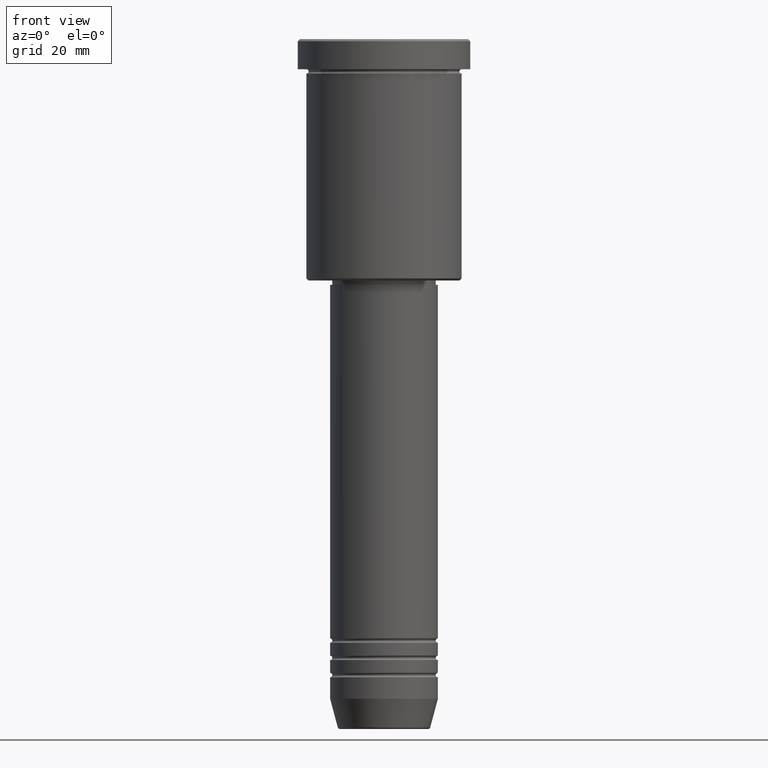
[diagram: clean part render]
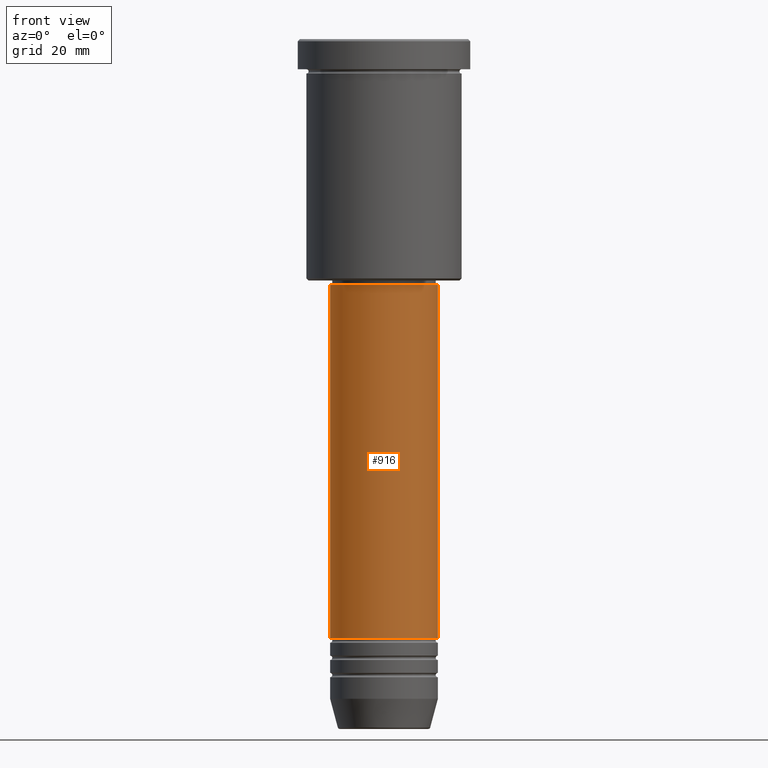
[diagram: same view with one face highlighted and labeled with its STEP entity id]
A machine part, front view. The second image highlights one B-rep face of the part: STEP entity #916.
In plain terms, the highlighted cylindrical surface (partial cylindrical patch) has radius 12.5 mm, axis along (-0, -0, 1).
Its self-contained STEP definition (entity closure, byte-faithful):
#3 = FACE_OUTER_BOUND ( 'NONE', #540, .T. ) ;
#85 = ORIENTED_EDGE ( 'NONE', *, *, #892, .F. ) ;
#110 = VECTOR ( 'NONE', #768, 1000.000000000000000 ) ;
#203 = DIRECTION ( 'NONE',  ( -0.000000000000000000, -0.000000000000000000, 1.000000000000000000 ) ) ;
#325 = VECTOR ( 'NONE', #991, 1000.000000000000000 ) ;
#331 = ORIENTED_EDGE ( 'NONE', *, *, #1027, .T. ) ;
#348 = DIRECTION ( 'NONE',  ( 1.000000000000000000, 0.000000000000000000, 0.000000000000000000 ) ) ;
#363 = CARTESIAN_POINT ( 'NONE',  ( 0.000000000000000000, 0.000000000000000000, 0.000000000000000000 ) ) ;
#371 = LINE ( 'NONE', #621, #325 ) ;
#442 = ORIENTED_EDGE ( 'NONE', *, *, #590, .T. ) ;
#468 = DIRECTION ( 'NONE',  ( 1.000000000000000000, 0.000000000000000000, 0.000000000000000000 ) ) ;
#540 = EDGE_LOOP ( 'NONE', ( #85, #331, #442, #788 ) ) ;
#548 = CARTESIAN_POINT ( 'NONE',  ( 12.50000000000000000, 0.000000000000000000, -57.00000000000001421 ) ) ;
#558 = CIRCLE ( 'NONE', #1105, 12.50000000000000000 ) ;
#576 = CARTESIAN_POINT ( 'NONE',  ( 12.50000000000000000, 0.000000000000000000, 0.000000000000000000 ) ) ;
#590 = EDGE_CURVE ( 'NONE', #869, #990, #1016, .T. ) ;
#598 = VERTEX_POINT ( 'NONE', #926 ) ;
#605 = DIRECTION ( 'NONE',  ( -0.000000000000000000, -0.000000000000000000, 1.000000000000000000 ) ) ;
#621 = CARTESIAN_POINT ( 'NONE',  ( -12.50000000000000000, 1.530808498934191521E-15, 0.000000000000000000 ) ) ;
#668 = AXIS2_PLACEMENT_3D ( 'NONE', #363, #1096, #1068 ) ;
#691 = CARTESIAN_POINT ( 'NONE',  ( 0.000000000000000000, 0.000000000000000000, -57.00000000000001421 ) ) ;
#762 = CARTESIAN_POINT ( 'NONE',  ( 0.000000000000000000, 0.000000000000000000, -138.9999999999999716 ) ) ;
#768 = DIRECTION ( 'NONE',  ( -0.000000000000000000, -0.000000000000000000, 1.000000000000000000 ) ) ;
#788 = ORIENTED_EDGE ( 'NONE', *, *, #847, .F. ) ;
#789 = CARTESIAN_POINT ( 'NONE',  ( 12.50000000000000000, 0.000000000000000000, -138.9999999999999716 ) ) ;
#794 = CARTESIAN_POINT ( 'NONE',  ( -12.50000000000000000, 1.530808498934191521E-15, -138.9999999999999716 ) ) ;
#847 = EDGE_CURVE ( 'NONE', #598, #990, #1146, .T. ) ;
#869 = VERTEX_POINT ( 'NONE', #789 ) ;
#887 = VERTEX_POINT ( 'NONE', #794 ) ;
#892 = EDGE_CURVE ( 'NONE', #887, #598, #371, .T. ) ;
#916 = ADVANCED_FACE ( 'NONE', ( #3 ), #1175, .T. ) ;
#926 = CARTESIAN_POINT ( 'NONE',  ( -12.50000000000000000, 1.530808498934191521E-15, -57.00000000000001421 ) ) ;
#990 = VERTEX_POINT ( 'NONE', #548 ) ;
#991 = DIRECTION ( 'NONE',  ( -0.000000000000000000, -0.000000000000000000, 1.000000000000000000 ) ) ;
#1016 = LINE ( 'NONE', #576, #110 ) ;
#1027 = EDGE_CURVE ( 'NONE', #887, #869, #558, .T. ) ;
#1068 = DIRECTION ( 'NONE',  ( 1.000000000000000000, 0.000000000000000000, 0.000000000000000000 ) ) ;
#1096 = DIRECTION ( 'NONE',  ( -0.000000000000000000, -0.000000000000000000, 1.000000000000000000 ) ) ;
#1102 = AXIS2_PLACEMENT_3D ( 'NONE', #691, #605, #348 ) ;
#1105 = AXIS2_PLACEMENT_3D ( 'NONE', #762, #203, #468 ) ;
#1146 = CIRCLE ( 'NONE', #1102, 12.50000000000000000 ) ;
#1175 = CYLINDRICAL_SURFACE ( 'NONE', #668, 12.50000000000000000 ) ;